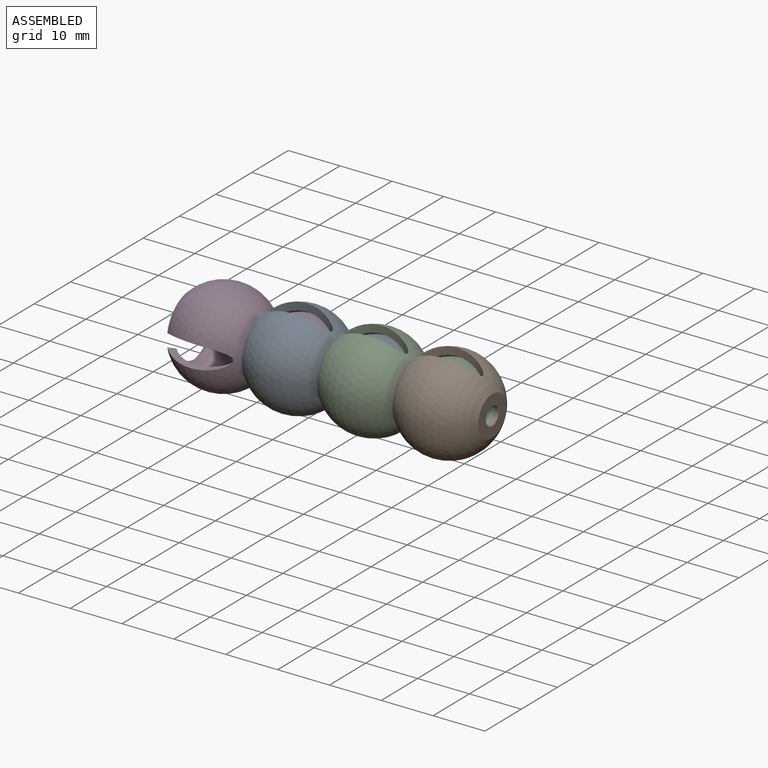
[diagram: assembled view]
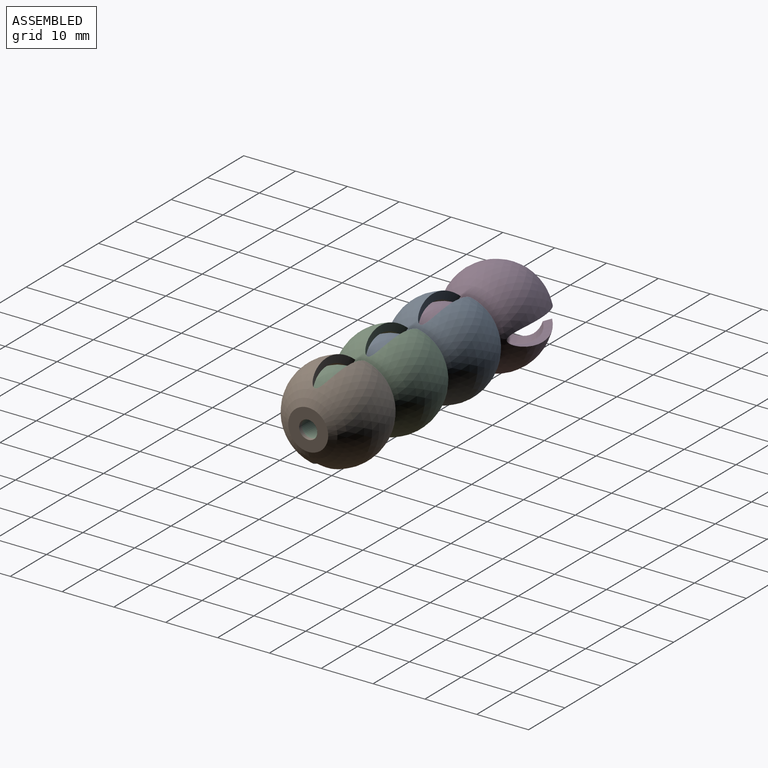
[diagram: assembled view, second angle]
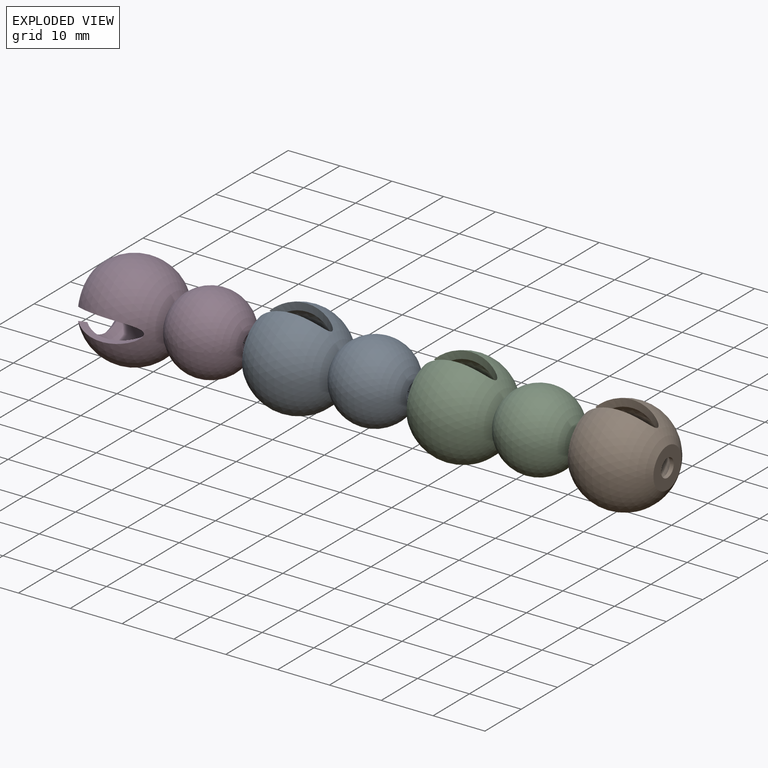
[diagram: exploded view]
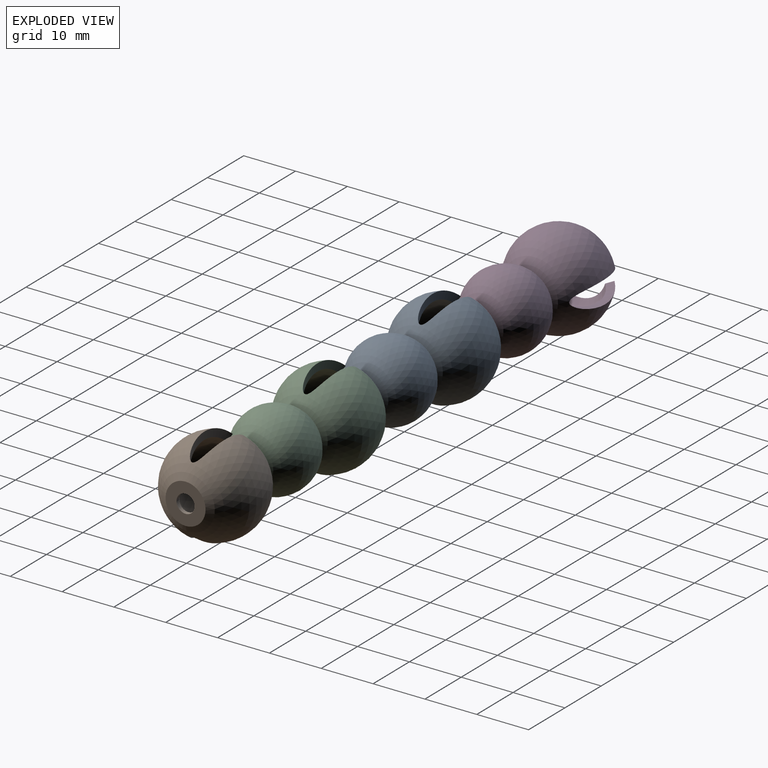
[diagram: exploded view, second angle]
ASSEMBLY  parts=4 mates=3
PART A: 8 faces, bbox 18.2x28.6x18.2 mm
  f0: sphere r=7.7mm, area 531.1mm2, adj f2,f3,f5,f6,f7
  f1: sphere r=7.52mm, area 651.4mm2, adj f4,f7
  f2: cone r=5.35mm half-angle=44deg, axis (0,1,0), area 21.6mm2, adj f0,f4,f5,f6
  f3: cone r=5.35mm half-angle=44deg, axis (0,1,0), area 21.6mm2, adj f0,f4,f5,f6
  f4: sphere r=9.1mm, area 742.2mm2, adj f1,f2,f3,f5,f6
  f5: extruded ~12.91x4.5mm, area 43.6mm2, adj f0,f2,f3,f4
  f6: extruded ~12.91x4.5mm, area 43.5mm2, adj f0,f2,f3,f4
  f7: cylinder r=1.75mm len=14.52mm, axis (0,1,0), area 159.7mm2, adj f0,f1
PART B: 8 faces, bbox 18.2x14.8x18.2 mm
  f0: sphere r=7.7mm, area 531.1mm2, adj f2,f3,f5,f6,f7
  f1: sphere r=9.1mm, area 742.2mm2, adj f2,f3,f4,f5,f6
  f2: cone r=5.35mm half-angle=44deg, axis (0,1,0), area 21.6mm2, adj f0,f1,f5,f6
  f3: cone r=5.35mm half-angle=44deg, axis (0,1,0), area 21.6mm2, adj f0,f1,f5,f6
  f4: plane 7.72x7.72mm, normal (0,-1,0), area 37.2mm2, adj f1,f7
  f5: extruded ~12.91x4.5mm, area 43.6mm2, adj f0,f1,f2,f3
  f6: extruded ~12.91x4.5mm, area 43.5mm2, adj f0,f1,f2,f3
  f7: cylinder r=1.75mm len=3.5mm, axis (0,1,0), area 8.2mm2, adj f0,f4
PART C: same geometry as A
PART D: same geometry as A
PLACE A rot(axis=(0,0,1),90deg) t=(-46.84,-0.5,55.5)mm
PLACE B rot(axis=(0,0,1),90deg) t=(-17.8,-0.5,55.5)mm
PLACE C rot(axis=(0,0,1),90deg) t=(-32.32,-0.5,55.5)mm
PLACE D rot(axis=(-0.58,0.58,0.58),120deg) t=(-61.36,-0.5,55.5)mm
MATE fastened A.f7 <-> C.f7  axis (-1,0,0) through (-39.52,-0.5,55.5)mm
MATE fastened B.f7 <-> C.f7  axis (-1,0,0) through (-25,-0.5,55.5)mm
MATE fastened D.f7 <-> A.f7  axis (-1,0,0) through (-54.04,-0.5,55.5)mm
